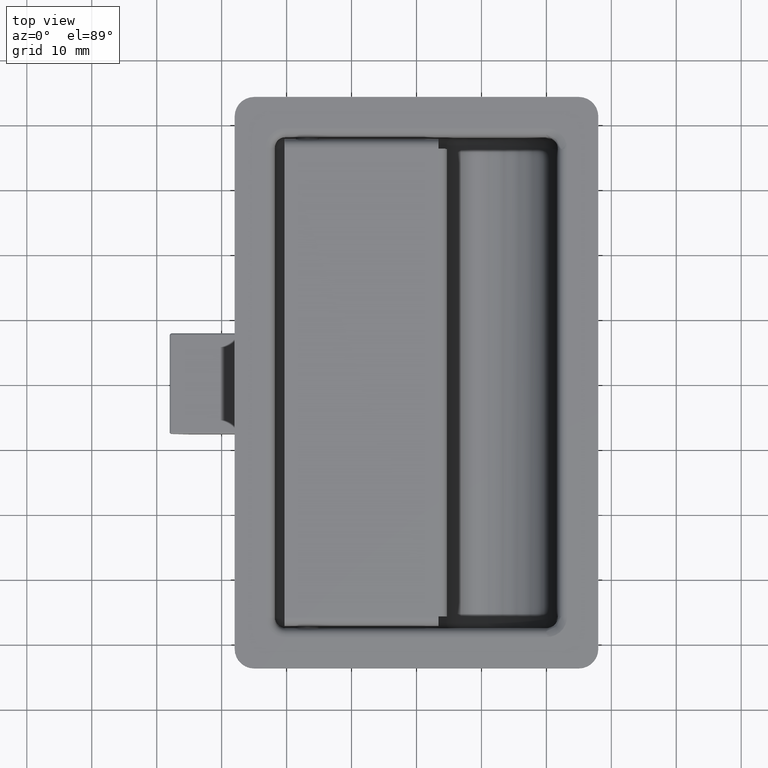
[diagram: clean part render]
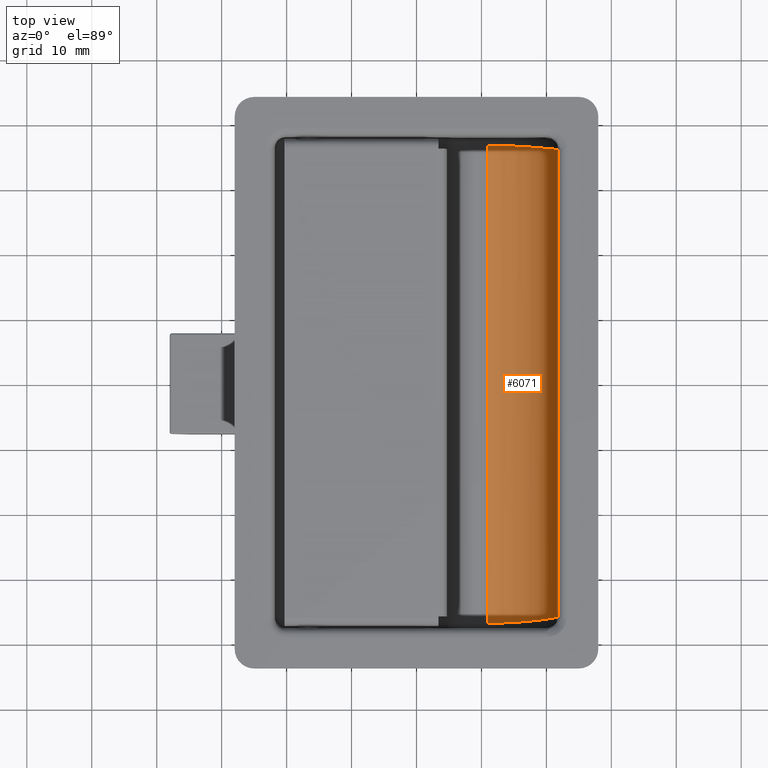
[diagram: same view with one face highlighted and labeled with its STEP entity id]
A machine part, top view. The second image highlights one B-rep face of the part: STEP entity #6071.
In plain terms, the highlighted cylindrical surface (partial cylindrical patch) has radius 10.8 mm, axis along (-0, 1, 0).
Its self-contained STEP definition (entity closure, byte-faithful):
#189=B_SPLINE_CURVE_WITH_KNOTS('',3,(#10234,#10235,#10236,#10237,#10238,
#10239,#10240,#10241,#10242,#10243),.UNSPECIFIED.,.F.,.F.,(4,2,2,2,4),(0.,
0.25,0.5,0.75,1.),.UNSPECIFIED.);
#190=B_SPLINE_CURVE_WITH_KNOTS('',3,(#10244,#10245,#10246,#10247,#10248,
#10249,#10250,#10251,#10252,#10253),.UNSPECIFIED.,.F.,.F.,(4,2,2,2,4),(0.,
0.25,0.5,0.75,1.),.UNSPECIFIED.);
#320=LINE('',#10227,#854);
#323=LINE('',#10233,#857);
#854=VECTOR('',#7497,73.6);
#857=VECTOR('',#7502,72.);
#1590=FACE_OUTER_BOUND('',#2011,.T.);
#2011=EDGE_LOOP('',(#4442,#4443,#4444,#4445));
#2821=VERTEX_POINT('',#10225);
#2822=VERTEX_POINT('',#10226);
#2823=VERTEX_POINT('',#10231);
#2824=VERTEX_POINT('',#10232);
#3401=EDGE_CURVE('',#2821,#2822,#320,.T.);
#3404=EDGE_CURVE('',#2823,#2824,#323,.T.);
#3405=EDGE_CURVE('',#2822,#2824,#189,.T.);
#3406=EDGE_CURVE('',#2823,#2821,#190,.T.);
#4442=ORIENTED_EDGE('',*,*,#3404,.T.);
#4443=ORIENTED_EDGE('',*,*,#3405,.F.);
#4444=ORIENTED_EDGE('',*,*,#3401,.F.);
#4445=ORIENTED_EDGE('',*,*,#3406,.F.);
#5894=CYLINDRICAL_SURFACE('',#6541,10.8);
#6071=ADVANCED_FACE('',(#1590),#5894,.F.);
#6541=AXIS2_PLACEMENT_3D('',#10230,#7500,#7501);
#7497=DIRECTION('',(0.,-1.,0.));
#7500=DIRECTION('center_axis',(0.,-1.,0.));
#7501=DIRECTION('ref_axis',(0.,0.,-1.));
#7502=DIRECTION('',(0.,-1.,0.));
#10225=CARTESIAN_POINT('',(-11.,36.8,-14.8));
#10226=CARTESIAN_POINT('',(-11.,-36.8,-14.8));
#10227=CARTESIAN_POINT('',(-11.,39.,-14.8));
#10230=CARTESIAN_POINT('Origin',(-11.,39.,-4.));
#10231=CARTESIAN_POINT('',(-21.8,36.,-4.));
#10232=CARTESIAN_POINT('',(-21.8,-36.,-4.));
#10233=CARTESIAN_POINT('',(-21.8,39.,-4.));
#10234=CARTESIAN_POINT('Ctrl Pts',(-11.,-36.8,-14.8));
#10235=CARTESIAN_POINT('Ctrl Pts',(-12.4120409264954,-36.7999999992473,
-14.8));
#10236=CARTESIAN_POINT('Ctrl Pts',(-13.828713502784,-36.7499999996267,-14.5181442662368));
#10237=CARTESIAN_POINT('Ctrl Pts',(-16.437248636302,-36.6000000003732,-13.437653636007));
#10238=CARTESIAN_POINT('Ctrl Pts',(-17.6385100584753,-36.4999999996228,
-12.6349964151541));
#10239=CARTESIAN_POINT('Ctrl Pts',(-19.6349964151541,-36.3000000003772,
-10.6385100584753));
#10240=CARTESIAN_POINT('Ctrl Pts',(-20.4376325128267,-36.1999999996203,
-9.43729963217019));
#10241=CARTESIAN_POINT('Ctrl Pts',(-21.5181653894171,-36.0500000003798,
-6.82866250691578));
#10242=CARTESIAN_POINT('Ctrl Pts',(-21.8,-36.0000000007402,-5.41204092649321));
#10243=CARTESIAN_POINT('Ctrl Pts',(-21.8,-36.,-4.));
#10244=CARTESIAN_POINT('Ctrl Pts',(-21.8,36.,-4.));
#10245=CARTESIAN_POINT('Ctrl Pts',(-21.8,36.00000000075,-5.41204092649321));
#10246=CARTESIAN_POINT('Ctrl Pts',(-21.5181653894171,36.0500000003769,-6.82866250691567));
#10247=CARTESIAN_POINT('Ctrl Pts',(-20.4376325128267,36.1999999996231,-9.43729963217029));
#10248=CARTESIAN_POINT('Ctrl Pts',(-19.6349964151542,36.3000000003739,-10.6385100584752));
#10249=CARTESIAN_POINT('Ctrl Pts',(-17.6385100584752,36.4999999996261,-12.6349964151542));
#10250=CARTESIAN_POINT('Ctrl Pts',(-16.4372486363018,36.6000000003756,-13.437653636007));
#10251=CARTESIAN_POINT('Ctrl Pts',(-13.8287135027841,36.7499999996244,-14.5181442662368));
#10252=CARTESIAN_POINT('Ctrl Pts',(-12.4120409264954,36.7999999992523,-14.8));
#10253=CARTESIAN_POINT('Ctrl Pts',(-11.,36.8,-14.8));